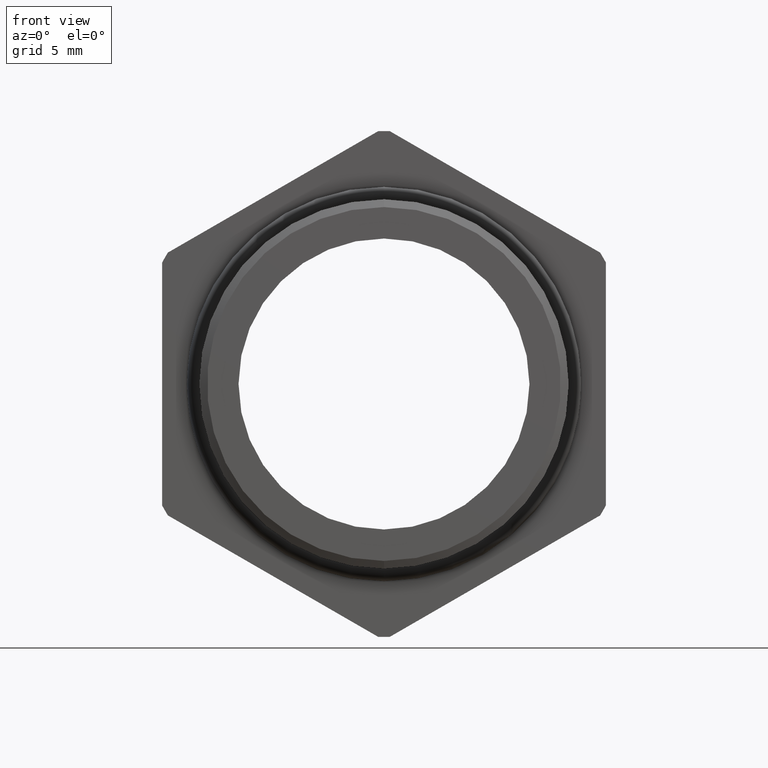
[diagram: clean part render]
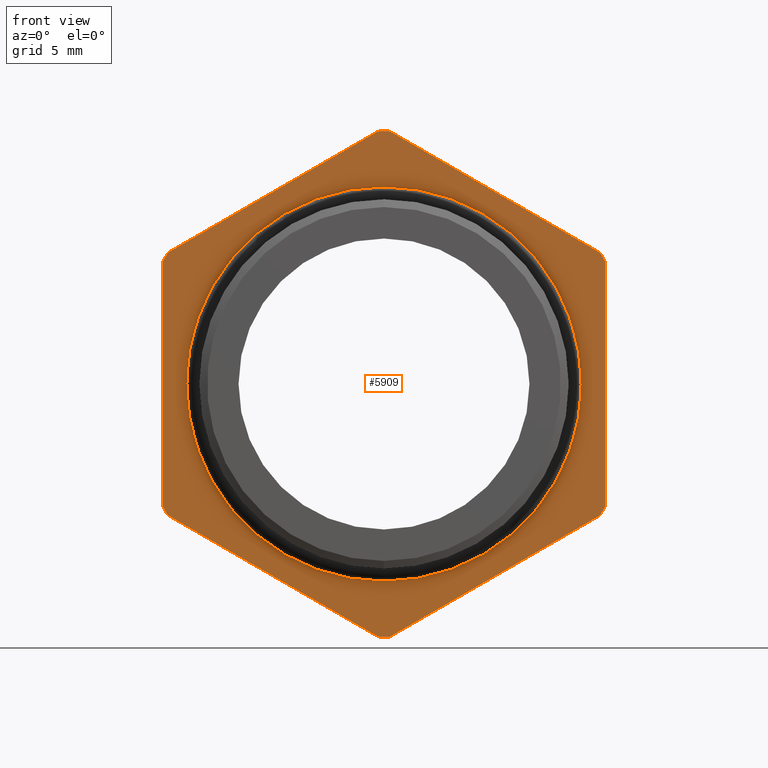
[diagram: same view with one face highlighted and labeled with its STEP entity id]
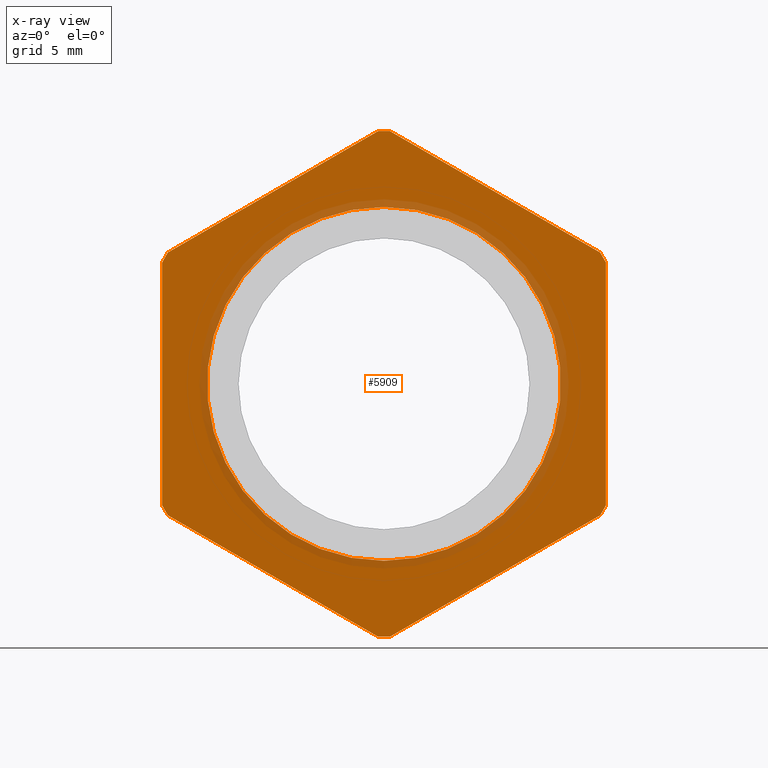
[diagram: x-ray of the same camera — body ghosted, the highlighted face saturated]
A machine part, front view. The second image highlights one B-rep face of the part: STEP entity #5909.
The next image is the same camera in x-ray: the body ghosted, the highlighted face saturated — about 12% of this face is hidden behind the body in this view.
In plain terms, the highlighted planar face has unit normal (0, -1, -0).
Its self-contained STEP definition (entity closure, byte-faithful):
#12 = CARTESIAN_POINT ( 'NONE',  ( 3.857637417314162700E-017, 0.2075548905829479300, 0.3150000000000000000 ) ) ;
#13 = CARTESIAN_POINT ( 'NONE',  ( 0.0000000000000000000, 0.2075548905829479300, -0.3150000000000000000 ) ) ;
#126 = DIRECTION ( 'NONE',  ( 0.0000000000000000000, 0.0000000000000000000, -1.000000000000000000 ) ) ;
#127 = DIRECTION ( 'NONE',  ( -0.0000000000000000000, -1.000000000000000000, -0.0000000000000000000 ) ) ;
#128 = CARTESIAN_POINT ( 'NONE',  ( 0.0000000000000000000, 0.2075548905829479300, 0.0000000000000000000 ) ) ;
#129 = AXIS2_PLACEMENT_3D ( 'NONE', #128, #127, #126 ) ;
#135 = CIRCLE ( 'NONE', #129, 0.3150000000000000000 ) ;
#1652 = CARTESIAN_POINT ( 'NONE',  ( 0.3847399997329629100, 0.2075548905829479300, 0.2339769702459617000 ) ) ;
#1679 = CARTESIAN_POINT ( 'NONE',  ( -0.01026000026703685300, 0.2075548905829479300, -0.4501830987437449000 ) ) ;
#1680 = DIRECTION ( 'NONE',  ( 0.0000000000000000000, 0.0000000000000000000, -1.000000000000000000 ) ) ;
#1681 = DIRECTION ( 'NONE',  ( -0.0000000000000000000, -1.000000000000000000, -0.0000000000000000000 ) ) ;
#1682 = CARTESIAN_POINT ( 'NONE',  ( 0.0000000000000000000, 0.2075548905829479300, 0.0000000000000000000 ) ) ;
#1683 = AXIS2_PLACEMENT_3D ( 'NONE', #1682, #1681, #1680 ) ;
#1684 = CIRCLE ( 'NONE', #1683, 0.4502999999999999800 ) ;
#1685 = CARTESIAN_POINT ( 'NONE',  ( 0.0000000000000000000, 0.2075548905829479300, -0.4502999999999999800 ) ) ;
#1699 = CIRCLE ( 'NONE', #1759, 0.4502999999999999800 ) ;
#1705 = CARTESIAN_POINT ( 'NONE',  ( 0.3950000000000000200, 0.2075548905829479300, -0.2162061284977832000 ) ) ;
#1734 = DIRECTION ( 'NONE',  ( 0.0000000000000000000, 0.0000000000000000000, -1.000000000000000000 ) ) ;
#1735 = DIRECTION ( 'NONE',  ( -0.0000000000000000000, -1.000000000000000000, -0.0000000000000000000 ) ) ;
#1736 = CARTESIAN_POINT ( 'NONE',  ( 0.0000000000000000000, 0.2075548905829479300, 0.0000000000000000000 ) ) ;
#1737 = AXIS2_PLACEMENT_3D ( 'NONE', #1736, #1735, #1734 ) ;
#1738 = CIRCLE ( 'NONE', #1737, 0.4502999999999999800 ) ;
#1739 = CARTESIAN_POINT ( 'NONE',  ( 0.01026000026703718800, 0.2075548905829479300, -0.4501830987437449000 ) ) ;
#1756 = DIRECTION ( 'NONE',  ( 0.0000000000000000000, 0.0000000000000000000, -1.000000000000000000 ) ) ;
#1757 = DIRECTION ( 'NONE',  ( -0.0000000000000000000, -1.000000000000000000, -0.0000000000000000000 ) ) ;
#1758 = CARTESIAN_POINT ( 'NONE',  ( 0.0000000000000000000, 0.2075548905829479300, 0.0000000000000000000 ) ) ;
#1759 = AXIS2_PLACEMENT_3D ( 'NONE', #1758, #1757, #1756 ) ;
#1777 = CARTESIAN_POINT ( 'NONE',  ( 0.3847399997329628000, 0.2075548905829479300, -0.2339769702459618400 ) ) ;
#1787 = DIRECTION ( 'NONE',  ( 0.0000000000000000000, 0.0000000000000000000, -1.000000000000000000 ) ) ;
#1788 = DIRECTION ( 'NONE',  ( -0.0000000000000000000, -1.000000000000000000, -0.0000000000000000000 ) ) ;
#1789 = CARTESIAN_POINT ( 'NONE',  ( 0.0000000000000000000, 0.2075548905829479300, 0.0000000000000000000 ) ) ;
#1790 = AXIS2_PLACEMENT_3D ( 'NONE', #1789, #1788, #1787 ) ;
#1791 = CIRCLE ( 'NONE', #1790, 0.4502999999999999800 ) ;
#1800 = CARTESIAN_POINT ( 'NONE',  ( 0.3949999999999999100, 0.2075548905829479300, 0.2162061284977834200 ) ) ;
#1821 = CARTESIAN_POINT ( 'NONE',  ( -0.3949999999999999600, 0.2075548905829479300, 0.2162061284977833100 ) ) ;
#1843 = DIRECTION ( 'NONE',  ( 0.0000000000000000000, 0.0000000000000000000, -1.000000000000000000 ) ) ;
#1844 = DIRECTION ( 'NONE',  ( -0.0000000000000000000, -1.000000000000000000, -0.0000000000000000000 ) ) ;
#1845 = CARTESIAN_POINT ( 'NONE',  ( 0.0000000000000000000, 0.2075548905829479300, 0.0000000000000000000 ) ) ;
#1846 = AXIS2_PLACEMENT_3D ( 'NONE', #1845, #1844, #1843 ) ;
#1847 = CIRCLE ( 'NONE', #1846, 0.4502999999999999800 ) ;
#1848 = CARTESIAN_POINT ( 'NONE',  ( -0.01026000026703707000, 0.2075548905829479300, 0.4501830987437449600 ) ) ;
#1860 = CARTESIAN_POINT ( 'NONE',  ( -0.3949999999999999600, 0.2075548905829479300, -0.2162061284977833100 ) ) ;
#1880 = DIRECTION ( 'NONE',  ( 0.0000000000000000000, 0.0000000000000000000, -1.000000000000000000 ) ) ;
#1881 = DIRECTION ( 'NONE',  ( -0.0000000000000000000, -1.000000000000000000, -0.0000000000000000000 ) ) ;
#1882 = CARTESIAN_POINT ( 'NONE',  ( 0.0000000000000000000, 0.2075548905829479300, 0.0000000000000000000 ) ) ;
#1883 = AXIS2_PLACEMENT_3D ( 'NONE', #1882, #1881, #1880 ) ;
#1884 = CIRCLE ( 'NONE', #1883, 0.4502999999999999800 ) ;
#1891 = DIRECTION ( 'NONE',  ( 0.0000000000000000000, 0.0000000000000000000, -1.000000000000000000 ) ) ;
#1892 = VECTOR ( 'NONE', #1891, 39.37007874015748100 ) ;
#1893 = CARTESIAN_POINT ( 'NONE',  ( -0.3949999999999999600, 0.2075548905829479300, 0.0000000000000000000 ) ) ;
#1894 = LINE ( 'NONE', #1893, #1892 ) ;
#1905 = CARTESIAN_POINT ( 'NONE',  ( -0.3847399997329629100, 0.2075548905829479300, 0.2339769702459617000 ) ) ;
#1908 = DIRECTION ( 'NONE',  ( 0.0000000000000000000, 0.0000000000000000000, -1.000000000000000000 ) ) ;
#1909 = DIRECTION ( 'NONE',  ( -0.0000000000000000000, -1.000000000000000000, -0.0000000000000000000 ) ) ;
#1910 = CARTESIAN_POINT ( 'NONE',  ( 0.0000000000000000000, 0.2075548905829479300, 0.0000000000000000000 ) ) ;
#1911 = AXIS2_PLACEMENT_3D ( 'NONE', #1910, #1909, #1908 ) ;
#1912 = CIRCLE ( 'NONE', #1911, 0.4502999999999999800 ) ;
#1913 = CARTESIAN_POINT ( 'NONE',  ( -0.3847399997329630800, 0.2075548905829479300, -0.2339769702459614000 ) ) ;
#1918 = CARTESIAN_POINT ( 'NONE',  ( 0.03875000000000009700, 0.2075548905829479300, 0.4784790355909023800 ) ) ;
#1919 = LINE ( 'NONE', #1918, #1962 ) ;
#1921 = DIRECTION ( 'NONE',  ( 0.8660254037844386000, 0.0000000000000000000, -0.5000000000000001100 ) ) ;
#1922 = VECTOR ( 'NONE', #1921, 39.37007874015748100 ) ;
#1923 = CARTESIAN_POINT ( 'NONE',  ( 0.03874999999999996500, 0.2075548905829479300, -0.4784790355909022100 ) ) ;
#1931 = LINE ( 'NONE', #1923, #1922 ) ;
#1961 = DIRECTION ( 'NONE',  ( -0.8660254037844388200, 0.0000000000000000000, -0.4999999999999998300 ) ) ;
#1962 = VECTOR ( 'NONE', #1961, 39.37007874015748100 ) ;
#1985 = DIRECTION ( 'NONE',  ( -0.8660254037844386000, 0.0000000000000000000, 0.5000000000000001100 ) ) ;
#1986 = VECTOR ( 'NONE', #1985, 39.37007874015748100 ) ;
#1993 = CARTESIAN_POINT ( 'NONE',  ( 0.4337500000000000200, 0.2075548905829479300, 0.2056810333988042000 ) ) ;
#1994 = LINE ( 'NONE', #1993, #1986 ) ;
#2029 = CARTESIAN_POINT ( 'NONE',  ( 0.01026000026703712500, 0.2075548905829479300, 0.4501830987437449000 ) ) ;
#2036 = DIRECTION ( 'NONE',  ( -2.994746533912406200E-016, 0.0000000000000000000, 1.000000000000000000 ) ) ;
#2037 = VECTOR ( 'NONE', #2036, 39.37007874015748100 ) ;
#2038 = CARTESIAN_POINT ( 'NONE',  ( 0.3949999999999999600, 0.2075548905829479300, 2.395797227129924000E-017 ) ) ;
#2048 = LINE ( 'NONE', #2038, #2037 ) ;
#2060 = LINE ( 'NONE', #2115, #2114 ) ;
#2113 = DIRECTION ( 'NONE',  ( 0.8660254037844388200, 0.0000000000000000000, 0.4999999999999998300 ) ) ;
#2114 = VECTOR ( 'NONE', #2113, 39.37007874015748100 ) ;
#2115 = CARTESIAN_POINT ( 'NONE',  ( 0.4337500000000000200, 0.2075548905829479300, -0.2056810333988043400 ) ) ;
#2511 = DIRECTION ( 'NONE',  ( 0.0000000000000000000, 0.0000000000000000000, -1.000000000000000000 ) ) ;
#2512 = DIRECTION ( 'NONE',  ( -0.0000000000000000000, -1.000000000000000000, -0.0000000000000000000 ) ) ;
#2513 = CARTESIAN_POINT ( 'NONE',  ( 0.0000000000000000000, 0.2075548905829479300, 0.0000000000000000000 ) ) ;
#2514 = AXIS2_PLACEMENT_3D ( 'NONE', #2513, #2512, #2511 ) ;
#2515 = CIRCLE ( 'NONE', #2514, 0.3150000000000000000 ) ;
#2599 = DIRECTION ( 'NONE',  ( 0.0000000000000000000, 0.0000000000000000000, -1.000000000000000000 ) ) ;
#2600 = DIRECTION ( 'NONE',  ( 0.0000000000000000000, -1.000000000000000000, -0.0000000000000000000 ) ) ;
#2601 = AXIS2_PLACEMENT_3D ( 'NONE', #2603, #2600, #2599 ) ;
#2603 = CARTESIAN_POINT ( 'NONE',  ( 0.3150000000000000000, 0.2075548905829479300, 0.0000000000000000000 ) ) ;
#2604 = PLANE ( 'NONE',  #2601 ) ;
#2605 = FACE_OUTER_BOUND ( 'NONE', #5912, .T. ) ;
#2606 = FACE_BOUND ( 'NONE', #5910, .T. ) ;
#4569 = VERTEX_POINT ( 'NONE', #13 ) ;
#4570 = VERTEX_POINT ( 'NONE', #12 ) ;
#4646 = EDGE_CURVE ( 'NONE', #4569, #4570, #135, .T. ) ;
#5437 = VERTEX_POINT ( 'NONE', #1652 ) ;
#5456 = VERTEX_POINT ( 'NONE', #1685 ) ;
#5458 = EDGE_CURVE ( 'NONE', #5459, #5456, #1684, .T. ) ;
#5459 = VERTEX_POINT ( 'NONE', #1679 ) ;
#5478 = VERTEX_POINT ( 'NONE', #1705 ) ;
#5480 = EDGE_CURVE ( 'NONE', #5500, #5478, #1699, .T. ) ;
#5489 = VERTEX_POINT ( 'NONE', #1739 ) ;
#5491 = EDGE_CURVE ( 'NONE', #5456, #5489, #1738, .T. ) ;
#5495 = EDGE_CURVE ( 'NONE', #5517, #5437, #1791, .T. ) ;
#5500 = VERTEX_POINT ( 'NONE', #1777 ) ;
#5517 = VERTEX_POINT ( 'NONE', #1800 ) ;
#5525 = VERTEX_POINT ( 'NONE', #1848 ) ;
#5527 = EDGE_CURVE ( 'NONE', #5604, #5525, #1847, .T. ) ;
#5539 = VERTEX_POINT ( 'NONE', #1821 ) ;
#5541 = EDGE_CURVE ( 'NONE', #5562, #5539, #1884, .T. ) ;
#5550 = VERTEX_POINT ( 'NONE', #1860 ) ;
#5557 = VERTEX_POINT ( 'NONE', #1913 ) ;
#5559 = EDGE_CURVE ( 'NONE', #5550, #5557, #1912, .T. ) ;
#5562 = VERTEX_POINT ( 'NONE', #1905 ) ;
#5566 = EDGE_CURVE ( 'NONE', #5539, #5550, #1894, .T. ) ;
#5578 = EDGE_CURVE ( 'NONE', #5557, #5459, #1931, .T. ) ;
#5583 = EDGE_CURVE ( 'NONE', #5525, #5562, #1919, .T. ) ;
#5597 = EDGE_CURVE ( 'NONE', #5437, #5604, #1994, .T. ) ;
#5604 = VERTEX_POINT ( 'NONE', #2029 ) ;
#5626 = EDGE_CURVE ( 'NONE', #5478, #5517, #2048, .T. ) ;
#5642 = EDGE_CURVE ( 'NONE', #5489, #5500, #2060, .T. ) ;
#5843 = EDGE_CURVE ( 'NONE', #4570, #4569, #2515, .T. ) ;
#5879 = ORIENTED_EDGE ( 'NONE', *, *, #5578, .T. ) ;
#5880 = ORIENTED_EDGE ( 'NONE', *, *, #5458, .T. ) ;
#5881 = ORIENTED_EDGE ( 'NONE', *, *, #5491, .T. ) ;
#5882 = ORIENTED_EDGE ( 'NONE', *, *, #5642, .T. ) ;
#5890 = ORIENTED_EDGE ( 'NONE', *, *, #5843, .F. ) ;
#5891 = ORIENTED_EDGE ( 'NONE', *, *, #5480, .T. ) ;
#5892 = ORIENTED_EDGE ( 'NONE', *, *, #5626, .T. ) ;
#5893 = ORIENTED_EDGE ( 'NONE', *, *, #5495, .T. ) ;
#5894 = ORIENTED_EDGE ( 'NONE', *, *, #5597, .T. ) ;
#5895 = ORIENTED_EDGE ( 'NONE', *, *, #5527, .T. ) ;
#5896 = ORIENTED_EDGE ( 'NONE', *, *, #5583, .T. ) ;
#5897 = ORIENTED_EDGE ( 'NONE', *, *, #5541, .T. ) ;
#5898 = ORIENTED_EDGE ( 'NONE', *, *, #5566, .T. ) ;
#5899 = ORIENTED_EDGE ( 'NONE', *, *, #5559, .T. ) ;
#5909 = ADVANCED_FACE ( 'NONE', ( #2606, #2605 ), #2604, .T. ) ;
#5910 = EDGE_LOOP ( 'NONE', ( #5911, #5890 ) ) ;
#5911 = ORIENTED_EDGE ( 'NONE', *, *, #4646, .F. ) ;
#5912 = EDGE_LOOP ( 'NONE', ( #5891, #5892, #5893, #5894, #5895, #5896, #5897, #5898, #5899, #5879, #5880, #5881, #5882 ) ) ;